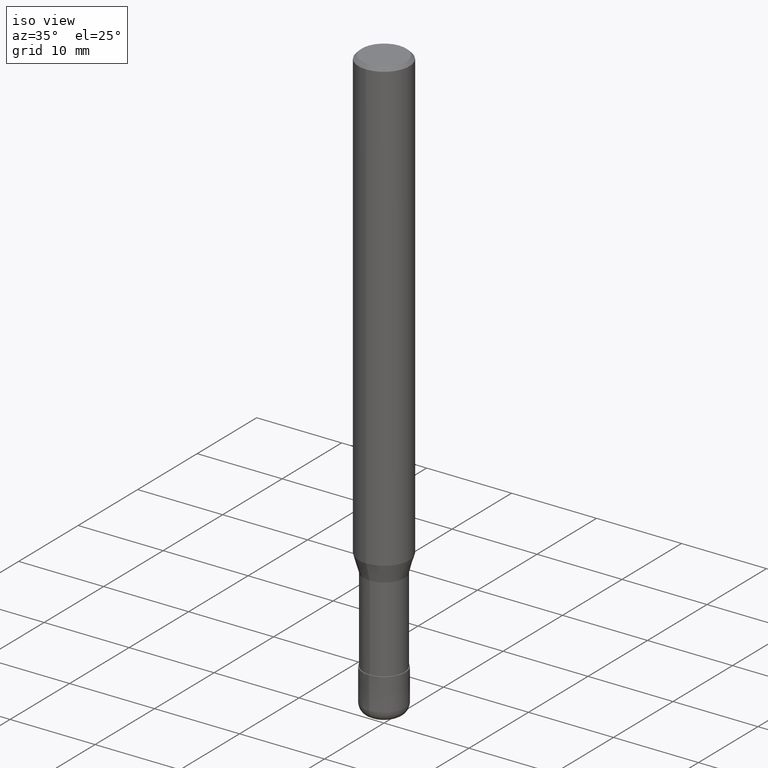
[diagram: clean part render]
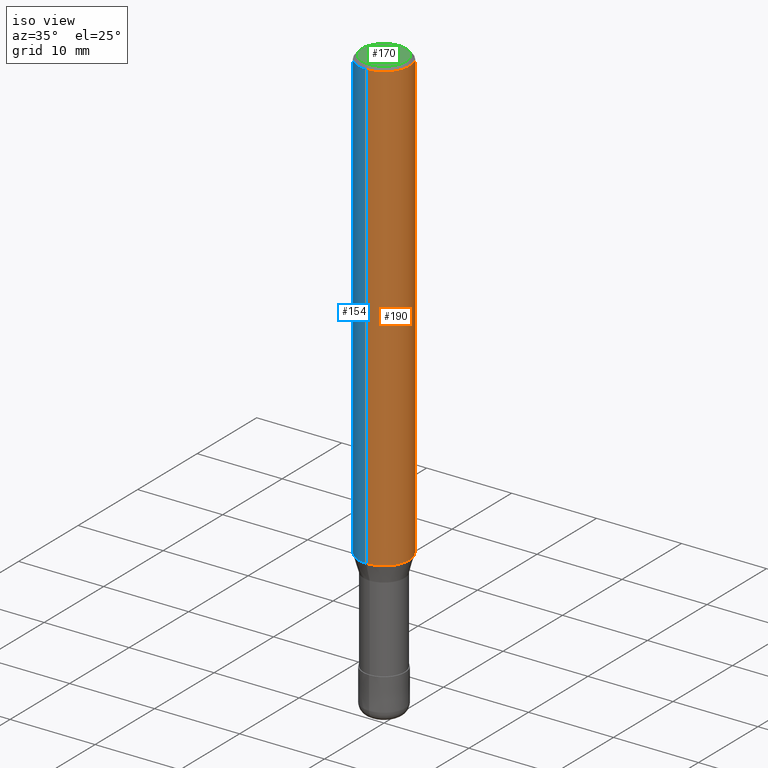
[diagram: same view with three faces highlighted in distinct colors, each labeled with its STEP entity id]
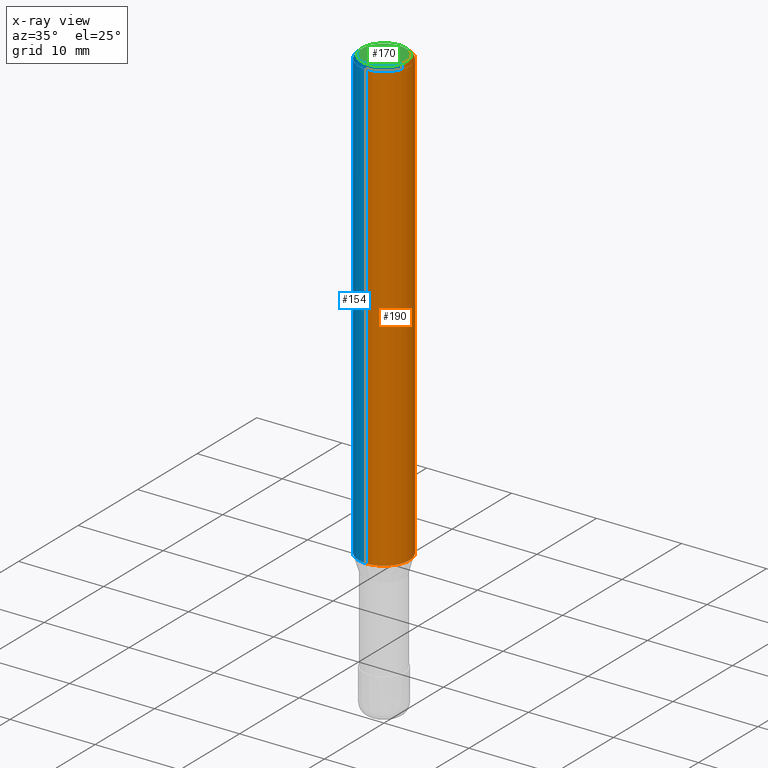
[diagram: x-ray of the same camera — body ghosted, the three highlighted faces saturated]
A machine part, iso view with three faces highlighted in distinct colors.
The next image is the same camera in x-ray (body ghosted, the three faces saturated) — at least one of them is partly hidden behind the body in this view.
Their STEP definitions:

[orange] entity #190 — the highlighted cylindrical surface (edge-blend (fillet) strip) has radius 3 mm, axis along (-0, -0, 1).
#122=VERTEX_POINT('',#279);
#132=EDGE_CURVE('',#122,#150,#292,.T.);
#150=VERTEX_POINT('',#312);
#156=EDGE_CURVE('',#222,#122,#319,.T.);
#160=EDGE_CURVE('',#200,#222,#323,.T.);
#174=EDGE_CURVE('',#200,#150,#339,.T.);
#190=ADVANCED_FACE('',(#355),#356,.T.);
#200=VERTEX_POINT('',#367);
#222=VERTEX_POINT('',#391);
#279=CARTESIAN_POINT('',(3.67381906146713E-016,-3.0,-52.942));
#292=LINE('',#465,#466);
#312=CARTESIAN_POINT('',(3.67381906146713E-016,-3.0,-0.399999999999999));
#319=CIRCLE('',#495,3.0);
#323=LINE('',#502,#503);
#339=CIRCLE('',#523,3.0);
#355=FACE_OUTER_BOUND('',#545,.T.);
#356=CYLINDRICAL_SURFACE('',#546,3.0);
#367=CARTESIAN_POINT('',(0.0,3.0,-0.399999999999999));
#391=CARTESIAN_POINT('',(0.0,3.0,-52.942));
#465=CARTESIAN_POINT('',(3.67381906146713E-016,-3.0,-26.671));
#466=VECTOR('',#662,1.0);
#495=AXIS2_PLACEMENT_3D('',#688,#689,#690);
#502=CARTESIAN_POINT('',(-3.67381906146713E-016,3.0,-26.671));
#503=VECTOR('',#692,1.0);
#523=AXIS2_PLACEMENT_3D('',#716,#717,#718);
#545=EDGE_LOOP('',(#737,#738,#739,#740));
#546=AXIS2_PLACEMENT_3D('',#741,#742,#743);
#662=DIRECTION('',(-0.0,-0.0,1.0));
#688=CARTESIAN_POINT('',(0.0,0.0,-52.942));
#689=DIRECTION('',(0.0,0.0,-1.0));
#690=DIRECTION('',(0.0,1.0,0.0));
#692=DIRECTION('',(0.0,0.0,-1.0));
#716=CARTESIAN_POINT('',(0.0,0.0,-0.399999999999999));
#717=DIRECTION('',(0.0,0.0,-1.0));
#718=DIRECTION('',(0.0,1.0,0.0));
#737=ORIENTED_EDGE('',*,*,#160,.F.);
#738=ORIENTED_EDGE('',*,*,#174,.T.);
#739=ORIENTED_EDGE('',*,*,#132,.F.);
#740=ORIENTED_EDGE('',*,*,#156,.F.);
#741=CARTESIAN_POINT('',(0.0,0.0,-26.671));
#742=DIRECTION('',(-0.0,-0.0,1.0));
#743=DIRECTION('',(0.0,1.0,0.0));

[blue] entity #154 — the highlighted cylindrical surface (edge-blend (fillet) strip) has radius 3 mm, axis along (-0, -0, 1).
#122=VERTEX_POINT('',#279);
#132=EDGE_CURVE('',#122,#150,#292,.T.);
#150=VERTEX_POINT('',#312);
#154=ADVANCED_FACE('',(#316),#317,.T.);
#160=EDGE_CURVE('',#200,#222,#323,.T.);
#166=EDGE_CURVE('',#122,#222,#329,.T.);
#168=EDGE_CURVE('',#150,#200,#331,.T.);
#200=VERTEX_POINT('',#367);
#222=VERTEX_POINT('',#391);
#279=CARTESIAN_POINT('',(3.67381906146713E-016,-3.0,-52.942));
#292=LINE('',#465,#466);
#312=CARTESIAN_POINT('',(3.67381906146713E-016,-3.0,-0.399999999999999));
#316=FACE_OUTER_BOUND('',#491,.T.);
#317=CYLINDRICAL_SURFACE('',#492,3.0);
#323=LINE('',#502,#503);
#329=CIRCLE('',#511,3.0);
#331=CIRCLE('',#514,3.0);
#367=CARTESIAN_POINT('',(0.0,3.0,-0.399999999999999));
#391=CARTESIAN_POINT('',(0.0,3.0,-52.942));
#465=CARTESIAN_POINT('',(3.67381906146713E-016,-3.0,-26.671));
#466=VECTOR('',#662,1.0);
#491=EDGE_LOOP('',(#681,#682,#683,#684));
#492=AXIS2_PLACEMENT_3D('',#685,#686,#687);
#502=CARTESIAN_POINT('',(-3.67381906146713E-016,3.0,-26.671));
#503=VECTOR('',#692,1.0);
#511=AXIS2_PLACEMENT_3D('',#696,#697,#698);
#514=AXIS2_PLACEMENT_3D('',#699,#700,#701);
#662=DIRECTION('',(-0.0,-0.0,1.0));
#681=ORIENTED_EDGE('',*,*,#160,.T.);
#682=ORIENTED_EDGE('',*,*,#166,.F.);
#683=ORIENTED_EDGE('',*,*,#132,.T.);
#684=ORIENTED_EDGE('',*,*,#168,.T.);
#685=CARTESIAN_POINT('',(0.0,0.0,-26.671));
#686=DIRECTION('',(-0.0,-0.0,1.0));
#687=DIRECTION('',(0.0,1.0,0.0));
#692=DIRECTION('',(0.0,0.0,-1.0));
#696=CARTESIAN_POINT('',(0.0,0.0,-52.942));
#697=DIRECTION('',(0.0,0.0,-1.0));
#698=DIRECTION('',(0.0,1.0,0.0));
#699=CARTESIAN_POINT('',(0.0,0.0,-0.399999999999999));
#700=DIRECTION('',(0.0,0.0,-1.0));
#701=DIRECTION('',(0.0,1.0,0.0));

[green] entity #170 — the highlighted planar face has unit normal (-0, 0, 1).
#102=VERTEX_POINT('',#256);
#142=VERTEX_POINT('',#304);
#144=EDGE_CURVE('',#102,#142,#306,.T.);
#164=EDGE_CURVE('',#142,#102,#327,.T.);
#170=ADVANCED_FACE('',(#333),#334,.T.);
#256=CARTESIAN_POINT('',(0.0,2.6,0.0));
#304=CARTESIAN_POINT('',(3.18397651993818E-016,-2.6,0.0));
#306=CIRCLE('',#481,2.6);
#327=CIRCLE('',#508,2.6);
#333=FACE_OUTER_BOUND('',#516,.T.);
#334=PLANE('',#517);
#481=AXIS2_PLACEMENT_3D('',#677,#678,#679);
#508=AXIS2_PLACEMENT_3D('',#693,#694,#695);
#516=EDGE_LOOP('',(#703,#704));
#517=AXIS2_PLACEMENT_3D('',#705,#706,#707);
#677=CARTESIAN_POINT('',(0.0,0.0,0.0));
#678=DIRECTION('',(0.0,0.0,-1.0));
#679=DIRECTION('',(0.0,1.0,0.0));
#693=CARTESIAN_POINT('',(0.0,0.0,0.0));
#694=DIRECTION('',(0.0,0.0,-1.0));
#695=DIRECTION('',(0.0,1.0,0.0));
#703=ORIENTED_EDGE('',*,*,#144,.F.);
#704=ORIENTED_EDGE('',*,*,#164,.F.);
#705=CARTESIAN_POINT('',(0.0,1.3,0.0));
#706=DIRECTION('',(-0.0,0.0,1.0));
#707=DIRECTION('',(0.0,-1.0,0.0));